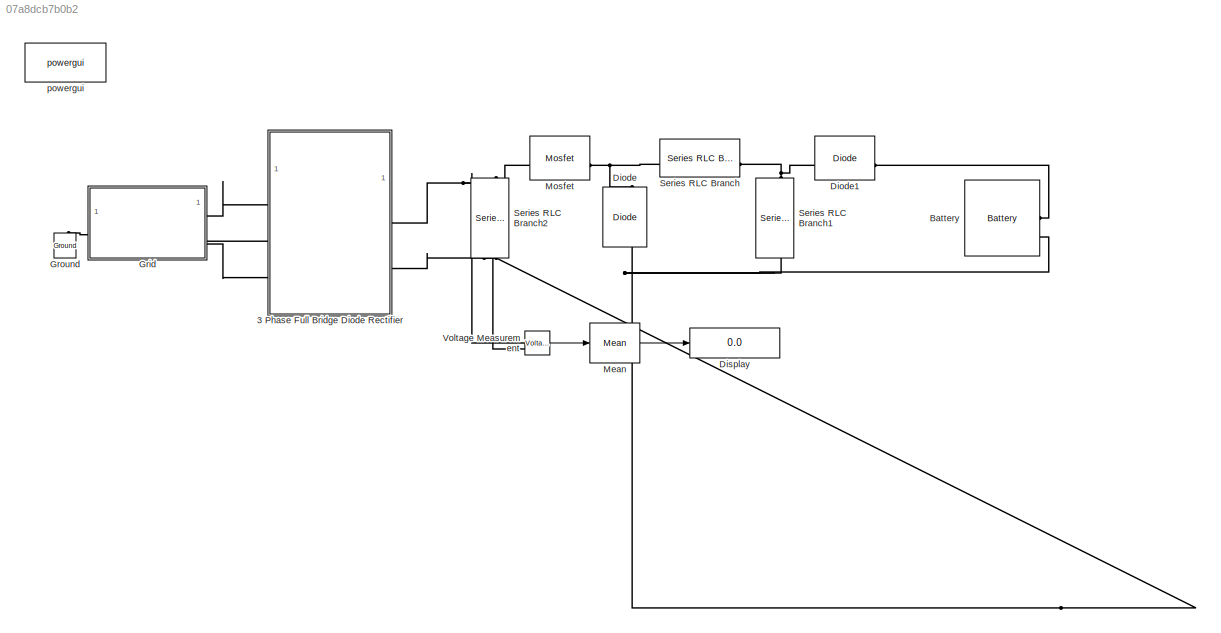
MODEL slx_07a8dcb7b0b2
KIND model
CONFIG AbsTol = auto
CONFIG EnableMultiTasking = off
CONFIG FixedStep = auto
CONFIG MaxStep = auto
CONFIG MinStep = auto
CONFIG RelTol = 1e-3
CONFIG SampleTimeConstraint = Unconstrained
CONFIG SolverName = VariableStepAuto
CONFIG StartTime = 0.0
CONFIG StopTime = 0.20
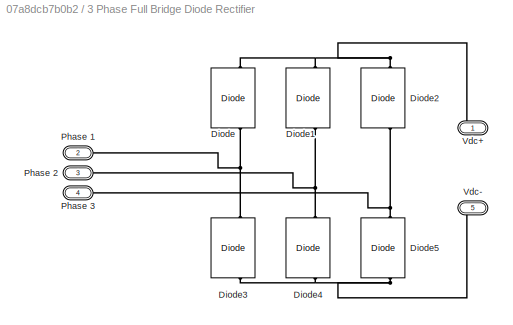
BLOCK [SubSystem] 3 Phase Full Bridge Diode Rectifier
BLOCK [Reference] 3 Phase Full Bridge Diode Rectifier/Diode  REF=spsDiodeLib/Diode
  LibrarySourceBlock = sps_lib/Power Electronics/Diode
  NameLocation = right
  SourceBlock = spsDiodeLib/Diode
  SourceType = Diode
BLOCK [Reference] 3 Phase Full Bridge Diode Rectifier/Diode1  REF=spsDiodeLib/Diode
  LibrarySourceBlock = sps_lib/Power Electronics/Diode
  NameLocation = right
  SourceBlock = spsDiodeLib/Diode
  SourceType = Diode
BLOCK [Reference] 3 Phase Full Bridge Diode Rectifier/Diode2  REF=spsDiodeLib/Diode
  LibrarySourceBlock = sps_lib/Power Electronics/Diode
  NameLocation = right
  SourceBlock = spsDiodeLib/Diode
  SourceType = Diode
BLOCK [Reference] 3 Phase Full Bridge Diode Rectifier/Diode3  REF=spsDiodeLib/Diode
  LibrarySourceBlock = sps_lib/Power Electronics/Diode
  NameLocation = right
  SourceBlock = spsDiodeLib/Diode
  SourceType = Diode
BLOCK [Reference] 3 Phase Full Bridge Diode Rectifier/Diode4  REF=spsDiodeLib/Diode
  LibrarySourceBlock = sps_lib/Power Electronics/Diode
  NameLocation = right
  SourceBlock = spsDiodeLib/Diode
  SourceType = Diode
BLOCK [Reference] 3 Phase Full Bridge Diode Rectifier/Diode5  REF=spsDiodeLib/Diode
  LibrarySourceBlock = sps_lib/Power Electronics/Diode
  NameLocation = right
  SourceBlock = spsDiodeLib/Diode
  SourceType = Diode
BLOCK [PMIOPort] 3 Phase Full Bridge Diode Rectifier/Phase 1
  Port = 2
  Side = Left
BLOCK [PMIOPort] 3 Phase Full Bridge Diode Rectifier/Phase 2
  Port = 3
  Side = Left
BLOCK [PMIOPort] 3 Phase Full Bridge Diode Rectifier/Phase 3
  Port = 4
  Side = Left
BLOCK [PMIOPort] 3 Phase Full Bridge Diode Rectifier/Vdc+
  Side = Right
BLOCK [PMIOPort] 3 Phase Full Bridge Diode Rectifier/Vdc-
  Port = 5
  Side = Right
BLOCK [Reference] Battery  REF=spsBatteryLib/Battery
  LibrarySourceBlock = sps_lib/Sources/Battery
  SourceBlock = spsBatteryLib/Battery
  SourceType = Battery
BLOCK [Reference] Diode  REF=spsDiodeLib/Diode
  LibrarySourceBlock = sps_lib/Power Electronics/Diode
  NameLocation = right
  SourceBlock = spsDiodeLib/Diode
  SourceType = Diode
BLOCK [Reference] Diode1  REF=spsDiodeLib/Diode
  LibrarySourceBlock = sps_lib/Power Electronics/Diode
  SourceBlock = spsDiodeLib/Diode
  SourceType = Diode
BLOCK [Display] Display
  Decimation = 1
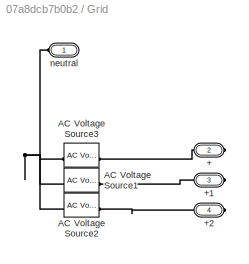
BLOCK [SubSystem] Grid
BLOCK [PMIOPort] Grid/+
  Port = 2
  Side = Right
BLOCK [PMIOPort] Grid/+1
  Port = 3
  Side = Right
BLOCK [PMIOPort] Grid/+2
  Port = 4
  Side = Right
BLOCK [Reference] Grid/AC Voltage Source1  REF=spsACVoltageSourceLib/AC Voltage Source
  LibrarySourceBlock = sps_lib/Sources/AC Voltage Source
  NameLocation = left
  SourceBlock = spsACVoltageSourceLib/AC Voltage Source
  SourceType = AC Voltage Source
BLOCK [Reference] Grid/AC Voltage Source2  REF=spsACVoltageSourceLib/AC Voltage Source
  LibrarySourceBlock = sps_lib/Sources/AC Voltage Source
  NameLocation = left
  SourceBlock = spsACVoltageSourceLib/AC Voltage Source
  SourceType = AC Voltage Source
BLOCK [Reference] Grid/AC Voltage Source3  REF=spsACVoltageSourceLib/AC Voltage Source
  LibrarySourceBlock = sps_lib/Sources/AC Voltage Source
  NameLocation = left
  SourceBlock = spsACVoltageSourceLib/AC Voltage Source
  SourceType = AC Voltage Source
BLOCK [PMIOPort] Grid/neutral
  Side = Left
BLOCK [Reference] Ground  REF=spsGroundLib/Ground
  LibrarySourceBlock = sps_lib/Utilities/Ground
  NameLocation = right
  SourceBlock = spsGroundLib/Ground
  SourceType = Ground
BLOCK [Reference] Mean  REF=spsMeanLib/Mean
  LibrarySourceBlock = sps_lib/Sensors and Measurements/Mean
  SourceBlock = spsMeanLib/Mean
  SourceType = Mean
BLOCK [Reference] Mosfet  REF=spsMosfetLib/Mosfet
  LibrarySourceBlock = sps_lib/Power Electronics/Mosfet
  SourceBlock = spsMosfetLib/Mosfet
  SourceType = Mosfet
BLOCK [Reference] Series RLC Branch  REF=spsSeriesRLCBranchLib/Series RLC Branch
  LibrarySourceBlock = sps_lib/Passives/Series RLC Branch
  SourceBlock = spsSeriesRLCBranchLib/Series RLC Branch
  SourceType = Series RLC Branch
BLOCK [Reference] Series RLC Branch1  REF=spsSeriesRLCBranchLib/Series RLC Branch
  LibrarySourceBlock = sps_lib/Passives/Series RLC Branch
  NameLocation = left
  SourceBlock = spsSeriesRLCBranchLib/Series RLC Branch
  SourceType = Series RLC Branch
BLOCK [Reference] Series RLC Branch2  REF=spsSeriesRLCBranchLib/Series RLC Branch
  LibrarySourceBlock = sps_lib/Passives/Series RLC Branch
  NameLocation = left
  SourceBlock = spsSeriesRLCBranchLib/Series RLC Branch
  SourceType = Series RLC Branch
BLOCK [Reference] Voltage Measurement  REF=spsVoltageMeasurementLib/Voltage Measurement
  LibrarySourceBlock = sps_lib/Sensors and Measurements/Voltage Measurement
  SourceBlock = spsVoltageMeasurementLib/Voltage Measurement
  SourceType = Voltage Measurement
  UserDataPersistent = on
BLOCK [Reference] powergui  REF=sps_lib/powergui
  LibrarySourceBlock = sps_lib/powergui
  Priority = 1
  SourceBlock = sps_lib/powergui
  SourceType = PSB option menu block
LINE Mean:1 -> Display:1
LINE Voltage Measurement:1 -> Mean:1
PNET net1: 3 Phase Full Bridge Diode Rectifier/Diode1:LConn1 -- 3 Phase Full Bridge Diode Rectifier/Diode4:RConn1 -- 3 Phase Full Bridge Diode Rectifier/Phase 2:RConn1
PNET net2: 3 Phase Full Bridge Diode Rectifier/Diode1:RConn1 -- 3 Phase Full Bridge Diode Rectifier/Diode2:RConn1 -- 3 Phase Full Bridge Diode Rectifier/Diode:RConn1 -- 3 Phase Full Bridge Diode Rectifier/Vdc+:RConn1
PNET net3: 3 Phase Full Bridge Diode Rectifier/Diode2:LConn1 -- 3 Phase Full Bridge Diode Rectifier/Diode5:RConn1 -- 3 Phase Full Bridge Diode Rectifier/Phase 3:RConn1
PNET net4: 3 Phase Full Bridge Diode Rectifier/Diode3:LConn1 -- 3 Phase Full Bridge Diode Rectifier/Diode4:LConn1 -- 3 Phase Full Bridge Diode Rectifier/Diode5:LConn1 -- 3 Phase Full Bridge Diode Rectifier/Vdc-:RConn1
PNET net5: 3 Phase Full Bridge Diode Rectifier/Diode3:RConn1 -- 3 Phase Full Bridge Diode Rectifier/Diode:LConn1 -- 3 Phase Full Bridge Diode Rectifier/Phase 1:RConn1
PLINE 3 Phase Full Bridge Diode Rectifier:LConn1 -- Grid:RConn1
PLINE 3 Phase Full Bridge Diode Rectifier:LConn2 -- Grid:RConn2
PLINE 3 Phase Full Bridge Diode Rectifier:LConn3 -- Grid:RConn3
PNET net6: 3 Phase Full Bridge Diode Rectifier:RConn1 -- Mosfet:LConn1 -- Series RLC Branch2:LConn1 -- Voltage Measurement:LConn1
PNET net7: 3 Phase Full Bridge Diode Rectifier:RConn2 -- Battery:LConn2 -- Diode:LConn1 -- Series RLC Branch1:RConn1 -- Series RLC Branch2:RConn1 -- Voltage Measurement:LConn2
PLINE Battery:LConn1 -- Diode1:RConn1
PNET net8: Diode1:LConn1 -- Series RLC Branch1:LConn1 -- Series RLC Branch:RConn1
PNET net9: Diode:RConn1 -- Mosfet:RConn1 -- Series RLC Branch:LConn1
PLINE Grid/+1:RConn1 -- Grid/AC Voltage Source1:RConn1
PLINE Grid/+2:RConn1 -- Grid/AC Voltage Source2:RConn1
PLINE Grid/+:RConn1 -- Grid/AC Voltage Source3:RConn1
PNET net10: Grid/AC Voltage Source1:LConn1 -- Grid/AC Voltage Source2:LConn1 -- Grid/AC Voltage Source3:LConn1 -- Grid/neutral:RConn1
PLINE Grid:LConn1 -- Ground:LConn1
note: PNET lines group multi-terminal physical nets as a canonical sorted terminal list (undirected conserving connections); 2-terminal nets keep the pairwise PLINE form
